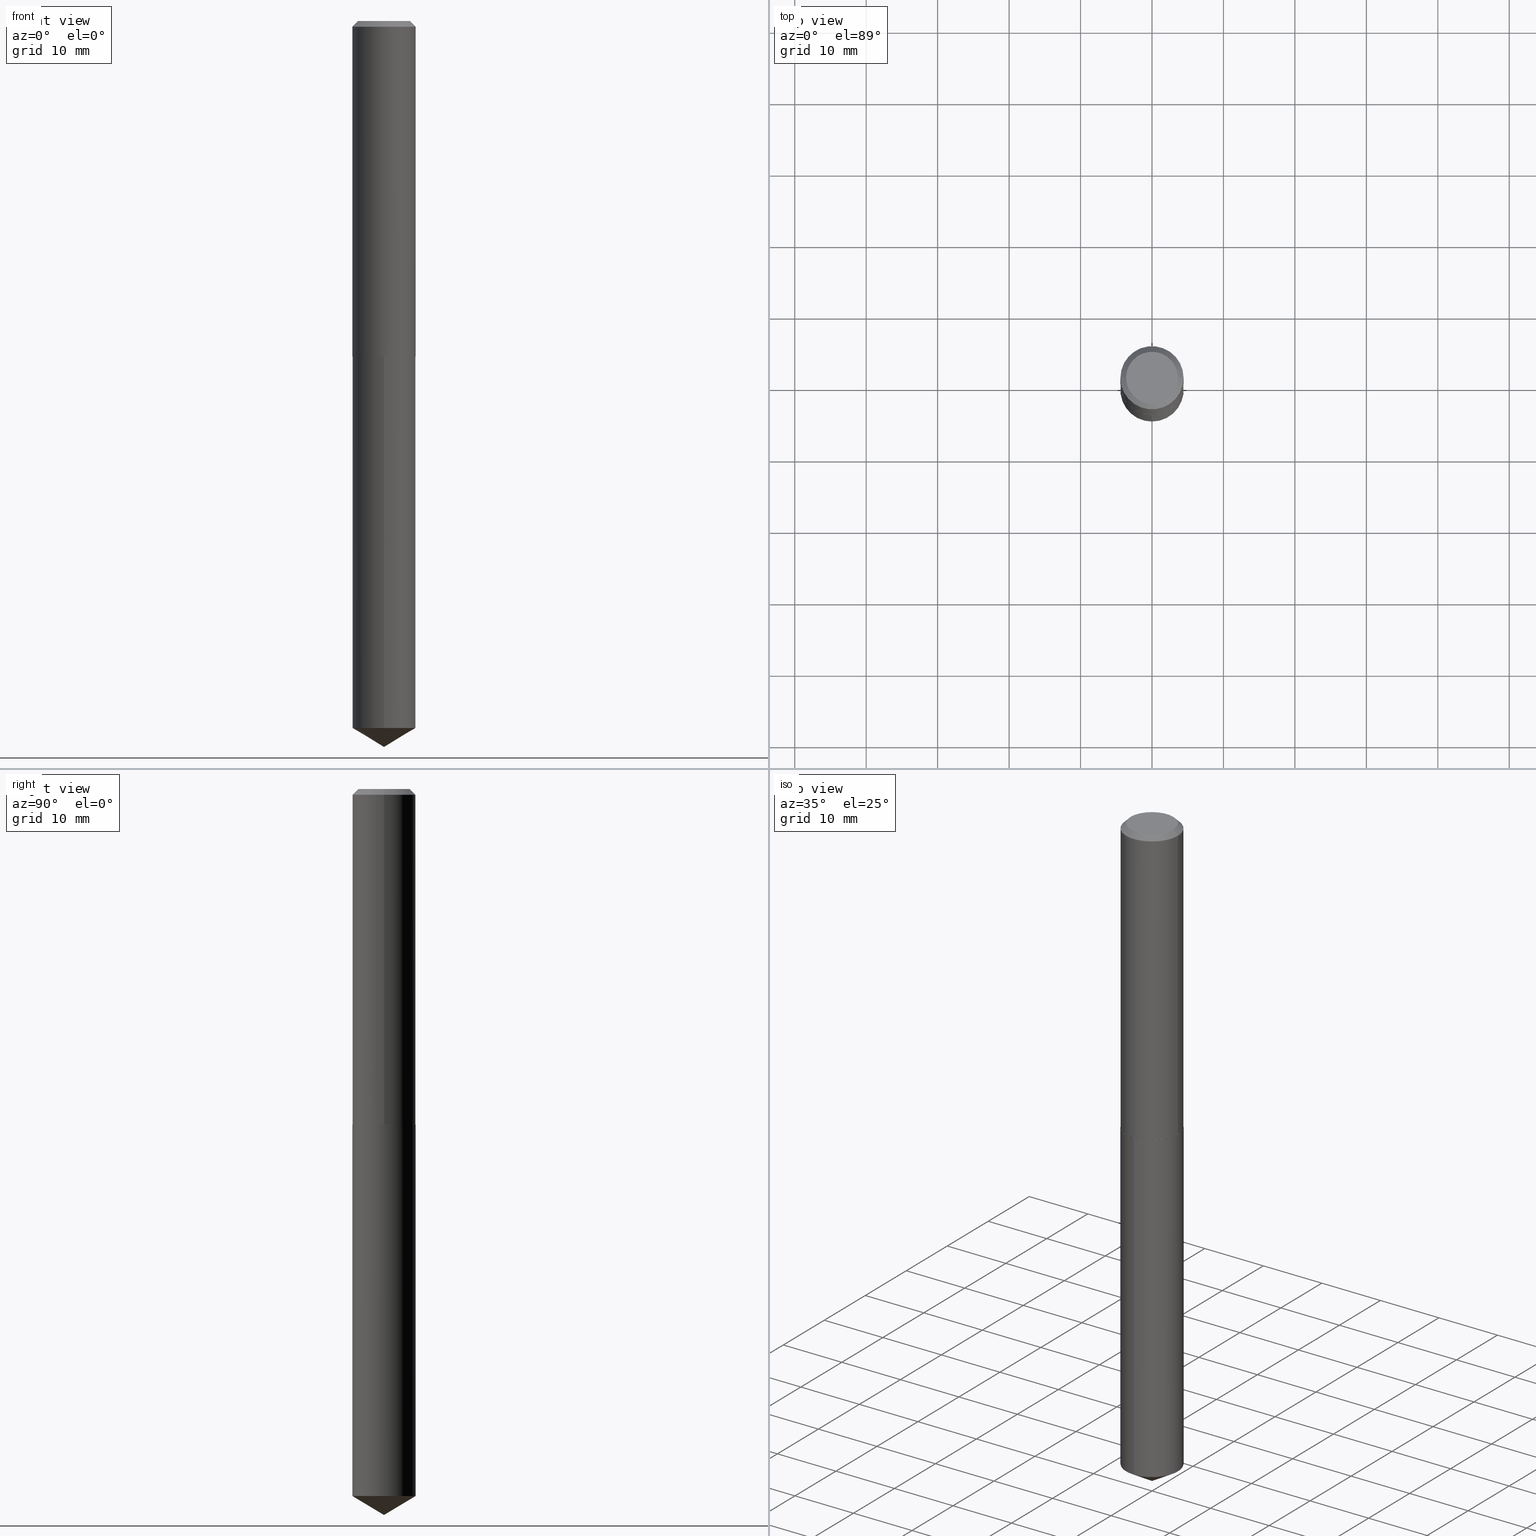
[diagram: canonical four-view strip — front | top / right | iso, engineering-drawing reading convention]
A machine part, canonical four-view strip (front | top / right | iso — engineering-drawing reading convention). The complete STEP part file that produces these views, byte-faithful:
ISO-10303-21;
HEADER;
FILE_DESCRIPTION (( 'STEP AP203' ),
    '1' );
FILE_NAME ('51219.STEP',
    '2024-04-22T18:40:49',
    ( '' ),
    ( '' ),
    'SwSTEP 2.0',
    'SolidWorks 2023',
    '' );
FILE_SCHEMA (( 'CONFIG_CONTROL_DESIGN' ));
ENDSEC;

DATA;
#1 = DIRECTION ( 'NONE',  ( -2.445496631306099242E-29, 3.491441491686219687E-15, 1.000000000000000000 ) ) ;
#2 = LINE ( 'NONE', #126, #95 ) ;
#3 = VECTOR ( 'NONE', #389, 39.37007874015748854 ) ;
#4 = CARTESIAN_POINT ( 'NONE',  ( 4.519226353830132171E-29, -6.452257514182132781E-15, -1.847999999999999865 ) ) ;
#5 = ORIENTED_EDGE ( 'NONE', *, *, #256, .F. ) ;
#6 = DIRECTION ( 'NONE',  ( -2.445496631306099242E-29, 3.491441491686219687E-15, 1.000000000000000000 ) ) ;
#7 = DIRECTION ( 'NONE',  ( -2.445496631306099242E-29, 3.491441491686219687E-15, 1.000000000000000000 ) ) ;
#8 = VERTEX_POINT ( 'NONE', #337 ) ;
#9 = CC_DESIGN_PERSON_AND_ORGANIZATION_ASSIGNMENT ( #232, #107, ( #304 ) ) ;
#10 = ORIENTED_EDGE ( 'NONE', *, *, #241, .F. ) ;
#11 = COORDINATED_UNIVERSAL_TIME_OFFSET ( 5, 0, .BEHIND. ) ;
#12 = AXIS2_PLACEMENT_3D ( 'NONE', #315, #40, #170 ) ;
#13 = ORIENTED_EDGE ( 'NONE', *, *, #316, .T. ) ;
#14 = DIMENSIONAL_EXPONENTS ( 1.000000000000000000, 0.000000000000000000, 0.000000000000000000, 0.000000000000000000, 0.000000000000000000, 0.000000000000000000, 0.000000000000000000 ) ;
#15 = CARTESIAN_POINT ( 'NONE',  ( 7.642090019328611420E-31, -1.091087918388491499E-16, -0.03125000000000024286 ) ) ;
#16 = EDGE_CURVE ( 'NONE', #230, #179, #263, .T. ) ;
#17 = PERSON_AND_ORGANIZATION_ROLE ( 'creator' ) ;
#18 = ORIENTED_EDGE ( 'NONE', *, *, #384, .F. ) ;
#19 = DIRECTION ( 'NONE',  ( -2.445496631306099242E-29, 3.491441491686219687E-15, 1.000000000000000000 ) ) ;
#20 = DIRECTION ( 'NONE',  ( -2.445468806185136597E-29, 3.491481338843145583E-15, 1.000000000000000000 ) ) ;
#21 = AXIS2_PLACEMENT_3D ( 'NONE', #55, #91, #160 ) ;
#22 = LINE ( 'NONE', #154, #3 ) ;
#23 = SECURITY_CLASSIFICATION ( '', '', #114 ) ;
#24 = DIRECTION ( 'NONE',  ( -1.000000000000000000, 6.982962677686266711E-15, 0.000000000000000000 ) ) ;
#25 = PERSON_AND_ORGANIZATION_ROLE ( 'creator' ) ;
#26 = EDGE_CURVE ( 'NONE', #73, #96, #89, .T. ) ;
#27 = PRODUCT_DEFINITION_SHAPE ( 'NONE', 'NONE',  #374 ) ;
#28 = APPROVAL ( #148, 'UNSPECIFIED' ) ;
#29 = DIRECTION ( 'NONE',  ( 1.000000000000000000, -6.982962677686264344E-15, 0.000000000000000000 ) ) ;
#30 = CIRCLE ( 'NONE', #303, 0.1740000000000001823 ) ;
#31 = LOCAL_TIME ( 14, 40, 49.00000000000000000, #205 ) ;
#32 = EDGE_CURVE ( 'NONE', #111, #251, #197, .T. ) ;
#33 = CYLINDRICAL_SURFACE ( 'NONE', #122, 0.1740000000000000713 ) ;
#34 = APPROVAL_DATE_TIME ( #311, #297 ) ;
#35 = DIRECTION ( 'NONE',  ( -2.445496631306099242E-29, 3.491441491686219687E-15, 1.000000000000000000 ) ) ;
#36 = APPROVAL_ROLE ( '' ) ;
#37 = AXIS2_PLACEMENT_3D ( 'NONE', #342, #7, #284 ) ;
#38 = ORIENTED_EDGE ( 'NONE', *, *, #26, .F. ) ;
#39 = VECTOR ( 'NONE', #370, 39.37007874015748143 ) ;
#40 = DIRECTION ( 'NONE',  ( -2.445496631306099242E-29, 3.491441491686219687E-15, 1.000000000000000000 ) ) ;
#41 = CALENDAR_DATE ( 2024, 22, 4 ) ;
#42 = CARTESIAN_POINT ( 'NONE',  ( 9.781883683577318238E-29, -1.396591324183687522E-14, -4.000000000000000000 ) ) ;
#43 = ORIENTED_EDGE ( 'NONE', *, *, #280, .T. ) ;
#44 = AXIS2_PLACEMENT_3D ( 'NONE', #380, #171, #288 ) ;
#45 = ORGANIZATION ( 'UNSPECIFIED', 'UNSPECIFIED', '' ) ;
#46 = ORIENTED_EDGE ( 'NONE', *, *, #59, .F. ) ;
#47 = ORIENTED_EDGE ( 'NONE', *, *, #191, .F. ) ;
#48 = CARTESIAN_POINT ( 'NONE',  ( 0.1427499999999999603, -1.141085766316490663E-15, 5.510910596237823534E-19 ) ) ;
#49 = DIRECTION ( 'NONE',  ( -6.982962677686265133E-15, -1.000000000000000000, 3.140055165131337128E-15 ) ) ;
#50 = DIRECTION ( 'NONE',  ( 1.000000000000000000, -6.982962677686266711E-15, 0.000000000000000000 ) ) ;
#51 = AXIS2_PLACEMENT_3D ( 'NONE', #182, #20, #124 ) ;
#52 = AXIS2_PLACEMENT_3D ( 'NONE', #347, #259, #113 ) ;
#53 = CARTESIAN_POINT ( 'NONE',  ( 0.000000000000000000, 0.000000000000000000, 0.000000000000000000 ) ) ;
#54 = CC_DESIGN_PERSON_AND_ORGANIZATION_ASSIGNMENT ( #199, #17, ( #374 ) ) ;
#55 = CARTESIAN_POINT ( 'NONE',  ( -6.738379978295965082E-48, 9.620620753268161422E-34, 2.755455298081536689E-19 ) ) ;
#56 = AXIS2_PLACEMENT_3D ( 'NONE', #301, #1, #305 ) ;
#57 = CARTESIAN_POINT ( 'NONE',  ( 4.519226353830131610E-29, -6.452257514182131992E-15, -1.847999999999999421 ) ) ;
#58 = CARTESIAN_POINT ( 'NONE',  ( 1.236344360222619006E-15, 0.1739999999999935210, -1.848000000000000309 ) ) ;
#59 = EDGE_CURVE ( 'NONE', #220, #179, #375, .T. ) ;
#60 = FACE_OUTER_BOUND ( 'NONE', #371, .T. ) ;
#61 = CONICAL_SURFACE ( 'NONE', #66, 0.1739999999999999880, 0.7853981633974445042 ) ;
#62 = VECTOR ( 'NONE', #84, 39.37007874015748854 ) ;
#63 = COORDINATED_UNIVERSAL_TIME_OFFSET ( 5, 0, .BEHIND. ) ;
#64 = ORIENTED_EDGE ( 'NONE', *, *, #77, .F. ) ;
#65 = ADVANCED_FACE ( 'NONE', ( #60 ), #217, .T. ) ;
#66 = AXIS2_PLACEMENT_3D ( 'NONE', #159, #366, #24 ) ;
#67 = DIRECTION ( 'NONE',  ( -2.445468806185136597E-29, 3.491481338843145583E-15, 1.000000000000000000 ) ) ;
#68 = EDGE_LOOP ( 'NONE', ( #348, #141, #257 ) ) ;
#69 = ORIENTED_EDGE ( 'NONE', *, *, #308, .F. ) ;
#70 = APPROVAL_ROLE ( '' ) ;
#71 = ORIENTED_EDGE ( 'NONE', *, *, #26, .T. ) ;
#72 = ORIENTED_EDGE ( 'NONE', *, *, #244, .F. ) ;
#73 = VERTEX_POINT ( 'NONE', #379 ) ;
#74 = CIRCLE ( 'NONE', #51, 0.1427499999999999603 ) ;
#75 = AXIS2_PLACEMENT_3D ( 'NONE', #53, #80, #240 ) ;
#76 = CYLINDRICAL_SURFACE ( 'NONE', #158, 0.1739999999999999880 ) ;
#77 = EDGE_CURVE ( 'NONE', #161, #96, #252, .T. ) ;
#78 = PERSON_AND_ORGANIZATION ( #356, #45 ) ;
#79 = MANIFOLD_SOLID_BREP ( 'Body-Move/Copy2[2]', #81 ) ;
#80 = DIRECTION ( 'NONE',  ( -2.445468806185136597E-29, 3.491481338843145583E-15, 1.000000000000000000 ) ) ;
#81 = CLOSED_SHELL ( 'NONE', ( #324, #388, #97, #90, #65, #167, #110, #184 ) ) ;
#82 = DIRECTION ( 'NONE',  ( -2.445468806185136597E-29, 3.491481338843145583E-15, 1.000000000000000000 ) ) ;
#83 = APPROVAL_DATE_TIME ( #298, #28 ) ;
#84 = DIRECTION ( 'NONE',  ( 0.7071067811866923458, -2.468850131083773646E-15, 0.7071067811864025776 ) ) ;
#85 = ADVANCED_FACE ( 'NONE', ( #149 ), #295, .T. ) ;
#86 = PLANE ( 'NONE',  #290 ) ;
#87 = DIRECTION ( 'NONE',  ( 6.090539988449797368E-15, 0.8571673007021165525, 0.5150380749100471611 ) ) ;
#88 = LOCAL_TIME ( 14, 40, 49.00000000000000000, #164 ) ;
#89 = LINE ( 'NONE', #365, #363 ) ;
#90 = ADVANCED_FACE ( 'NONE', ( #155 ), #121, .F. ) ;
#91 = DIRECTION ( 'NONE',  ( 2.438088387897960049E-29, -3.491481338843145188E-15, -1.000000000000000000 ) ) ;
#92 = FACE_OUTER_BOUND ( 'NONE', #112, .T. ) ;
#93 = DIRECTION ( 'NONE',  ( 1.000000000000000000, -6.982962677686265922E-15, 4.876191187177803928E-29 ) ) ;
#94 = CONICAL_SURFACE ( 'NONE', #128, 0.1740000000000001823, 0.7853981633976532262 ) ;
#95 = VECTOR ( 'NONE', #6, 39.37007874015748143 ) ;
#96 = VERTEX_POINT ( 'NONE', #332 ) ;
#97 = ADVANCED_FACE ( 'NONE', ( #302 ), #94, .T. ) ;
#98 = CARTESIAN_POINT ( 'NONE',  ( 9.526259048570207178E-29, -1.360081027718808417E-14, -3.895450252289205384 ) ) ;
#99 =( NAMED_UNIT ( * ) SI_UNIT ( $, .STERADIAN. ) SOLID_ANGLE_UNIT ( ) );
#100 = DIRECTION ( 'NONE',  ( -2.445496631306099242E-29, 3.491441491686219687E-15, 1.000000000000000000 ) ) ;
#101 = PRODUCT_RELATED_PRODUCT_CATEGORY ( 'detail', '', ( #304 ) ) ;
#102 = DIRECTION ( 'NONE',  ( -2.445496631306099242E-29, 3.491441491686219687E-15, 1.000000000000000000 ) ) ;
#103 = APPROVAL_STATUS ( 'not_yet_approved' ) ;
#104 = CIRCLE ( 'NONE', #326, 0.1739999999999999880 ) ;
#105 = ORIENTED_EDGE ( 'NONE', *, *, #359, .T. ) ;
#106 = AXIS2_PLACEMENT_3D ( 'NONE', #204, #323, #50 ) ;
#107 = PERSON_AND_ORGANIZATION_ROLE ( 'design_owner' ) ;
#108 = FACE_OUTER_BOUND ( 'NONE', #196, .T. ) ;
#109 = CARTESIAN_POINT ( 'NONE',  ( -1.215035505917314419E-15, -0.1740000000000135605, -3.895450252289204940 ) ) ;
#110 = ADVANCED_FACE ( 'NONE', ( #362 ), #61, .T. ) ;
#111 = VERTEX_POINT ( 'NONE', #271 ) ;
#112 = EDGE_LOOP ( 'NONE', ( #351, #317 ) ) ;
#113 = DIRECTION ( 'NONE',  ( 1.000000000000000000, 0.000000000000000000, 0.000000000000000000 ) ) ;
#114 = SECURITY_CLASSIFICATION_LEVEL ( 'unclassified' ) ;
#115 = AXIS2_PLACEMENT_3D ( 'NONE', #15, #377, #279 ) ;
#116 = CARTESIAN_POINT ( 'NONE',  ( 0.1735000000000003484, -7.663801538760702012E-15, -1.847999999999999421 ) ) ;
#117 = ORIENTED_EDGE ( 'NONE', *, *, #331, .F. ) ;
#118 = EDGE_LOOP ( 'NONE', ( #291, #71, #64, #139 ) ) ;
#119 = ADVANCED_BREP_SHAPE_REPRESENTATION ( '51219', ( #212, #79, #52 ), #224 ) ;
#120 = FACE_OUTER_BOUND ( 'NONE', #231, .T. ) ;
#121 = PLANE ( 'NONE',  #269 ) ;
#122 = AXIS2_PLACEMENT_3D ( 'NONE', #226, #162, #328 ) ;
#123 = DIRECTION ( 'NONE',  ( 1.000000000000000000, -6.982962677686265922E-15, 4.876176775795935793E-29 ) ) ;
#124 = DIRECTION ( 'NONE',  ( 1.000000000000000000, -6.982962677686265922E-15, 4.876191187177803928E-29 ) ) ;
#125 = DIRECTION ( 'NONE',  ( -2.445468806185136597E-29, 3.491481338843145583E-15, 1.000000000000000000 ) ) ;
#126 = CARTESIAN_POINT ( 'NONE',  ( -1.215035505917364906E-15, -0.1740000000000064273, -1.847999999999999199 ) ) ;
#127 = DIRECTION ( 'NONE',  ( -6.982962677686265133E-15, -1.000000000000000000, 3.140055165131337128E-15 ) ) ;
#128 = AXIS2_PLACEMENT_3D ( 'NONE', #387, #125, #29 ) ;
#129 = CIRCLE ( 'NONE', #234, 0.1735000000000003484 ) ;
#130 = PLANE ( 'NONE',  #21 ) ;
#131 = LINE ( 'NONE', #227, #39 ) ;
#132 = CARTESIAN_POINT ( 'NONE',  ( 9.526259048570207178E-29, -1.360081027718808417E-14, -3.895450252289205384 ) ) ;
#133 = DESIGN_CONTEXT ( 'detailed design', #195, 'design' ) ;
#134 = ORIENTED_EDGE ( 'NONE', *, *, #355, .T. ) ;
#135 = ADVANCED_FACE ( 'NONE', ( #92 ), #86, .F. ) ;
#136 = DIRECTION ( 'NONE',  ( 1.000000000000000000, -6.982962677686266711E-15, 0.000000000000000000 ) ) ;
#137 = AXIS2_PLACEMENT_3D ( 'NONE', #98, #102, #281 ) ;
#138 = EDGE_LOOP ( 'NONE', ( #340, #198, #72, #47 ) ) ;
#139 = ORIENTED_EDGE ( 'NONE', *, *, #355, .F. ) ;
#140 = LOCAL_TIME ( 14, 40, 49.00000000000000000, #63 ) ;
#141 = ORIENTED_EDGE ( 'NONE', *, *, #32, .T. ) ;
#142 = CARTESIAN_POINT ( 'NONE',  ( 4.519226353830132171E-29, -6.452257514182132781E-15, -1.847999999999999865 ) ) ;
#143 = EDGE_LOOP ( 'NONE', ( #10, #325, #229, #192 ) ) ;
#144 = DIRECTION ( 'NONE',  ( 1.000000000000000000, -6.982962677686264344E-15, 0.000000000000000000 ) ) ;
#145 = MECHANICAL_CONTEXT ( 'NONE', #334, 'mechanical' ) ;
#146 = ORIENTED_EDGE ( 'NONE', *, *, #308, .T. ) ;
#147 = CARTESIAN_POINT ( 'NONE',  ( 4.519226353830131610E-29, -6.452257514182131992E-15, -1.847999999999999421 ) ) ;
#148 = APPROVAL_STATUS ( 'not_yet_approved' ) ;
#149 = FACE_OUTER_BOUND ( 'NONE', #287, .T. ) ;
#150 = PERSON_AND_ORGANIZATION ( #356, #45 ) ;
#151 =( LENGTH_UNIT ( ) NAMED_UNIT ( * ) SI_UNIT ( $, .METRE. ) );
#152 = APPROVAL_ROLE ( '' ) ;
#153 =( NAMED_UNIT ( * ) PLANE_ANGLE_UNIT ( ) SI_UNIT ( $, .RADIAN. ) );
#154 = CARTESIAN_POINT ( 'NONE',  ( 0.1739999999999999880, -1.302835443451095394E-15, -0.03125000000000024286 ) ) ;
#155 = FACE_OUTER_BOUND ( 'NONE', #225, .T. ) ;
#156 = EDGE_CURVE ( 'NONE', #251, #220, #318, .T. ) ;
#157 = CIRCLE ( 'NONE', #206, 0.1427499999999999603 ) ;
#158 = AXIS2_PLACEMENT_3D ( 'NONE', #381, #19, #237 ) ;
#159 = CARTESIAN_POINT ( 'NONE',  ( 7.642090019328611420E-31, -1.091087918388491499E-16, -0.03125000000000024286 ) ) ;
#160 = DIRECTION ( 'NONE',  ( -1.000000000000000000, 6.982962677686265922E-15, -4.876176775795935793E-29 ) ) ;
#161 = VERTEX_POINT ( 'NONE', #313 ) ;
#162 = DIRECTION ( 'NONE',  ( -2.445468806185136597E-29, 3.491481338843145583E-15, 1.000000000000000000 ) ) ;
#163 = ADVANCED_FACE ( 'NONE', ( #222 ), #168, .T. ) ;
#164 = COORDINATED_UNIVERSAL_TIME_OFFSET ( 5, 0, .BEHIND. ) ;
#165 = ORIENTED_EDGE ( 'NONE', *, *, #203, .T. ) ;
#166 = CARTESIAN_POINT ( 'NONE',  ( -1.347675995659193016E-47, 1.924124150653632284E-33, 5.510910596163073378E-19 ) ) ;
#167 = ADVANCED_FACE ( 'NONE', ( #108 ), #33, .T. ) ;
#168 = CYLINDRICAL_SURFACE ( 'NONE', #37, 0.1739999999999999880 ) ;
#169 = PERSON_AND_ORGANIZATION ( #356, #45 ) ;
#170 = DIRECTION ( 'NONE',  ( -6.982962677686265133E-15, -1.000000000000000000, 3.140055165131337128E-15 ) ) ;
#171 = DIRECTION ( 'NONE',  ( -2.445468806185136597E-29, 3.491481338843145583E-15, 1.000000000000000000 ) ) ;
#172 = DIRECTION ( 'NONE',  ( 6.982962677686265922E-15, 1.000000000000000000, -3.491441491686219687E-15 ) ) ;
#173 = ORIENTED_EDGE ( 'NONE', *, *, #221, .F. ) ;
#174 = DATE_TIME_ROLE ( 'classification_date' ) ;
#175 = ORIENTED_EDGE ( 'NONE', *, *, #16, .F. ) ;
#176 = CARTESIAN_POINT ( 'NONE',  ( 4.518003619427039369E-29, -6.450511773512711278E-15, -1.847499999999999920 ) ) ;
#177 = CARTESIAN_POINT ( 'NONE',  ( -0.1739999999999999880, -2.043465922453204373E-15, -0.03125000000000024286 ) ) ;
#178 = APPLICATION_PROTOCOL_DEFINITION ( 'international standard', 'config_control_design', 1994, #334 ) ;
#179 = VERTEX_POINT ( 'NONE', #350 ) ;
#180 = CIRCLE ( 'NONE', #275, 0.1735000000000003484 ) ;
#181 = AXIS2_PLACEMENT_3D ( 'NONE', #132, #100, #127 ) ;
#182 = CARTESIAN_POINT ( 'NONE',  ( -1.347675995659193016E-47, 1.924124150653632284E-33, 5.510910596163073378E-19 ) ) ;
#183 = CARTESIAN_POINT ( 'NONE',  ( 7.642090019328611420E-31, -1.091087918388491499E-16, -0.03125000000000024286 ) ) ;
#184 = ADVANCED_FACE ( 'NONE', ( #245 ), #130, .F. ) ;
#185 = LINE ( 'NONE', #267, #62 ) ;
#186 = CARTESIAN_POINT ( 'NONE',  ( 0.1740000000000000713, -1.215035505917411055E-15, 8.484547589884932035E-30 ) ) ;
#187 = CC_DESIGN_PERSON_AND_ORGANIZATION_ASSIGNMENT ( #329, #25, ( #270 ) ) ;
#188 = AXIS2_PLACEMENT_3D ( 'NONE', #142, #266, #49 ) ;
#189 = APPROVAL ( #103, 'UNSPECIFIED' ) ;
#190 = LENGTH_MEASURE_WITH_UNIT ( LENGTH_MEASURE( 0.02539999999999999897 ), #151 );
#191 = EDGE_CURVE ( 'NONE', #161, #8, #367, .T. ) ;
#192 = ORIENTED_EDGE ( 'NONE', *, *, #203, .F. ) ;
#193 = CIRCLE ( 'NONE', #188, 0.1739999999999999880 ) ;
#194 = EDGE_LOOP ( 'NONE', ( #43, #376 ) ) ;
#195 = APPLICATION_CONTEXT ( 'configuration controlled 3d designs of mechanical parts and assemblies' ) ;
#196 = EDGE_LOOP ( 'NONE', ( #117, #321, #261, #282 ) ) ;
#197 = LINE ( 'NONE', #42, #385 ) ;
#198 = ORIENTED_EDGE ( 'NONE', *, *, #331, .T. ) ;
#199 = PERSON_AND_ORGANIZATION ( #356, #45 ) ;
#200 = AXIS2_PLACEMENT_3D ( 'NONE', #176, #382, #296 ) ;
#201 = LOCAL_TIME ( 14, 40, 49.00000000000000000, #360 ) ;
#202 = ORIENTED_EDGE ( 'NONE', *, *, #280, .F. ) ;
#203 = EDGE_CURVE ( 'NONE', #265, #228, #299, .T. ) ;
#204 = CARTESIAN_POINT ( 'NONE',  ( 7.642090019328611420E-31, -1.091087918388491499E-16, -0.03125000000000024286 ) ) ;
#205 = COORDINATED_UNIVERSAL_TIME_OFFSET ( 5, 0, .BEHIND. ) ;
#206 = AXIS2_PLACEMENT_3D ( 'NONE', #166, #67, #93 ) ;
#207 = PERSON_AND_ORGANIZATION_ROLE ( 'classification_officer' ) ;
#208 = CC_DESIGN_APPROVAL ( #297, ( #374 ) ) ;
#209 = PERSON_AND_ORGANIZATION_ROLE ( 'design_supplier' ) ;
#210 = CALENDAR_DATE ( 2024, 22, 4 ) ;
#211 = APPLICATION_PROTOCOL_DEFINITION ( 'international standard', 'config_control_design', 1994, #195 ) ;
#212 = MANIFOLD_SOLID_BREP ( 'Body-Move/Copy2[1]', #336 ) ;
#213 = DIRECTION ( 'NONE',  ( -6.982962677686265922E-15, -1.000000000000000000, 3.468864327941557532E-15 ) ) ;
#214 = DIRECTION ( 'NONE',  ( -2.445496631306099242E-29, 3.491441491686219687E-15, 1.000000000000000000 ) ) ;
#215 = ADVANCED_FACE ( 'NONE', ( #307 ), #223, .T. ) ;
#216 = CARTESIAN_POINT ( 'NONE',  ( -0.1739999999999999880, 1.105926714078561165E-15, -0.03125000000000024286 ) ) ;
#217 = CONICAL_SURFACE ( 'NONE', #44, 0.1740000000000001823, 0.7853981633976532262 ) ;
#218 = CC_DESIGN_SECURITY_CLASSIFICATION ( #23, ( #270 ) ) ;
#219 = CARTESIAN_POINT ( 'NONE',  ( -8.649745982891013731E-28, 1.234924868400484926E-13, 35.37007874015748143 ) ) ;
#220 = VERTEX_POINT ( 'NONE', #335 ) ;
#221 = EDGE_CURVE ( 'NONE', #179, #230, #193, .T. ) ;
#222 = FACE_OUTER_BOUND ( 'NONE', #249, .T. ) ;
#223 = CONICAL_SURFACE ( 'NONE', #358, 65.52281426576912793, 1.029744258676659197 ) ;
#224 =( GEOMETRIC_REPRESENTATION_CONTEXT ( 3 ) GLOBAL_UNCERTAINTY_ASSIGNED_CONTEXT ( ( #341 ) ) GLOBAL_UNIT_ASSIGNED_CONTEXT ( ( #238, #153, #99 ) ) REPRESENTATION_CONTEXT ( 'NONE', 'WORKASPACE' ) );
#225 = EDGE_LOOP ( 'NONE', ( #352, #18 ) ) ;
#226 = CARTESIAN_POINT ( 'NONE',  ( 0.000000000000000000, 0.000000000000000000, 0.000000000000000000 ) ) ;
#227 = CARTESIAN_POINT ( 'NONE',  ( -0.1740000000000000713, 1.236344360222574830E-15, -8.558947057043539962E-30 ) ) ;
#228 = VERTEX_POINT ( 'NONE', #177 ) ;
#229 = ORIENTED_EDGE ( 'NONE', *, *, #244, .T. ) ;
#230 = VERTEX_POINT ( 'NONE', #294 ) ;
#231 = EDGE_LOOP ( 'NONE', ( #255, #322, #175, #69 ) ) ;
#232 = PERSON_AND_ORGANIZATION ( #356, #45 ) ;
#233 = VECTOR ( 'NONE', #87, 39.37007874015748143 ) ;
#234 = AXIS2_PLACEMENT_3D ( 'NONE', #357, #82, #327 ) ;
#235 = DIRECTION ( 'NONE',  ( 1.000000000000000000, -6.982962677686265133E-15, 0.000000000000000000 ) ) ;
#236 = EDGE_CURVE ( 'NONE', #346, #73, #180, .T. ) ;
#237 = DIRECTION ( 'NONE',  ( -6.982962677686265133E-15, -1.000000000000000000, 3.140055165131337128E-15 ) ) ;
#238 =( CONVERSION_BASED_UNIT ( 'INCH', #190 ) LENGTH_UNIT ( ) NAMED_UNIT ( #14 ) );
#239 = CYLINDRICAL_SURFACE ( 'NONE', #75, 0.1740000000000000713 ) ;
#240 = DIRECTION ( 'NONE',  ( 1.000000000000000000, -6.982962677686267499E-15, 4.876176775795935793E-29 ) ) ;
#241 = EDGE_CURVE ( 'NONE', #372, #265, #74, .T. ) ;
#242 = CC_DESIGN_PERSON_AND_ORGANIZATION_ASSIGNMENT ( #78, #207, ( #23 ) ) ;
#243 = CARTESIAN_POINT ( 'NONE',  ( -0.1427499999999999603, 1.051372318159137798E-15, 5.510910596091454784E-19 ) ) ;
#244 = EDGE_CURVE ( 'NONE', #8, #228, #104, .T. ) ;
#245 = FACE_OUTER_BOUND ( 'NONE', #194, .T. ) ;
#246 = DIRECTION ( 'NONE',  ( -0.7071067811865447972, 2.468850131082228662E-15, -0.7071067811865501263 ) ) ;
#247 = VECTOR ( 'NONE', #364, 39.37007874015748143 ) ;
#248 = DIRECTION ( 'NONE',  ( 2.445496631306098962E-29, -3.491441491686219687E-15, -1.000000000000000000 ) ) ;
#249 = EDGE_LOOP ( 'NONE', ( #46, #13, #146, #173 ) ) ;
#250 = ORIENTED_EDGE ( 'NONE', *, *, #156, .F. ) ;
#251 = VERTEX_POINT ( 'NONE', #109 ) ;
#252 = CIRCLE ( 'NONE', #200, 0.1740000000000001823 ) ;
#253 = DIRECTION ( 'NONE',  ( -5.985567269335959423E-15, -0.8571673007021128887, 0.5150380749100530453 ) ) ;
#254 = ORIENTED_EDGE ( 'NONE', *, *, #272, .T. ) ;
#255 = ORIENTED_EDGE ( 'NONE', *, *, #156, .T. ) ;
#256 = EDGE_CURVE ( 'NONE', #372, #8, #22, .T. ) ;
#257 = ORIENTED_EDGE ( 'NONE', *, *, #316, .F. ) ;
#258 = EDGE_LOOP ( 'NONE', ( #5, #202, #165, #105 ) ) ;
#259 = DIRECTION ( 'NONE',  ( 0.000000000000000000, 0.000000000000000000, 1.000000000000000000 ) ) ;
#260 = DATE_TIME_ROLE ( 'creation_date' ) ;
#261 = ORIENTED_EDGE ( 'NONE', *, *, #191, .T. ) ;
#262 = PERSON_AND_ORGANIZATION ( #356, #45 ) ;
#263 = CIRCLE ( 'NONE', #12, 0.1739999999999999880 ) ;
#264 = APPROVAL_PERSON_ORGANIZATION ( #354, #189, #36 ) ;
#265 = VERTEX_POINT ( 'NONE', #243 ) ;
#266 = DIRECTION ( 'NONE',  ( -2.445496631306099242E-29, 3.491441491686219687E-15, 1.000000000000000000 ) ) ;
#267 = CARTESIAN_POINT ( 'NONE',  ( 0.1740000000000001823, -7.665547279430122726E-15, -1.847499999999999920 ) ) ;
#268 = FACE_OUTER_BOUND ( 'NONE', #138, .T. ) ;
#269 = AXIS2_PLACEMENT_3D ( 'NONE', #57, #390, #123 ) ;
#270 = PRODUCT_DEFINITION_FORMATION_WITH_SPECIFIED_SOURCE ( 'ANY', '', #304, .NOT_KNOWN. ) ;
#271 = CARTESIAN_POINT ( 'NONE',  ( 9.781986525224398090E-29, -1.396576596674487717E-14, -4.000000000000000000 ) ) ;
#272 = EDGE_CURVE ( 'NONE', #111, #220, #361, .T. ) ;
#273 = CARTESIAN_POINT ( 'NONE',  ( 9.781987427024246972E-29, -1.396576596674487717E-14, -4.000000000000000000 ) ) ;
#274 = CC_DESIGN_PERSON_AND_ORGANIZATION_ASSIGNMENT ( #150, #209, ( #270 ) ) ;
#275 = AXIS2_PLACEMENT_3D ( 'NONE', #147, #383, #235 ) ;
#276 = CC_DESIGN_APPROVAL ( #28, ( #270 ) ) ;
#277 = CALENDAR_DATE ( 2024, 22, 4 ) ;
#278 = CALENDAR_DATE ( 2024, 22, 4 ) ;
#279 = DIRECTION ( 'NONE',  ( -1.000000000000000000, 6.982962677686266711E-15, 0.000000000000000000 ) ) ;
#280 = EDGE_CURVE ( 'NONE', #265, #372, #157, .T. ) ;
#281 = DIRECTION ( 'NONE',  ( -6.982962677686265133E-15, -1.000000000000000000, 3.140055165131337128E-15 ) ) ;
#282 = ORIENTED_EDGE ( 'NONE', *, *, #359, .F. ) ;
#283 = DIRECTION ( 'NONE',  ( -2.445468806185136597E-29, 3.491481338843145583E-15, 1.000000000000000000 ) ) ;
#284 = DIRECTION ( 'NONE',  ( -6.982962677686265133E-15, -1.000000000000000000, 3.140055165131337128E-15 ) ) ;
#285 = DIRECTION ( 'NONE',  ( -2.445468806185136597E-29, 3.491481338843145583E-15, 1.000000000000000000 ) ) ;
#286 = DIRECTION ( 'NONE',  ( -0.7071067811866923458, 7.493145998870876386E-15, 0.7071067811864025776 ) ) ;
#287 = EDGE_LOOP ( 'NONE', ( #309, #254, #250 ) ) ;
#288 = DIRECTION ( 'NONE',  ( 1.000000000000000000, -6.982962677686264344E-15, 0.000000000000000000 ) ) ;
#289 = EDGE_CURVE ( 'NONE', #96, #161, #30, .T. ) ;
#290 = AXIS2_PLACEMENT_3D ( 'NONE', #4, #248, #172 ) ;
#291 = ORIENTED_EDGE ( 'NONE', *, *, #236, .T. ) ;
#292 = ORIENTED_EDGE ( 'NONE', *, *, #384, .T. ) ;
#293 = CALENDAR_DATE ( 2024, 22, 4 ) ;
#294 = CARTESIAN_POINT ( 'NONE',  ( -1.215035505917364906E-15, -0.1740000000000064273, -1.847999999999999199 ) ) ;
#295 = CONICAL_SURFACE ( 'NONE', #56, 65.52281426576912793, 1.029744258676659197 ) ;
#296 = DIRECTION ( 'NONE',  ( 1.000000000000000000, -6.982962677686264344E-15, 0.000000000000000000 ) ) ;
#297 = APPROVAL ( #306, 'UNSPECIFIED' ) ;
#298 = DATE_AND_TIME ( #210, #201 ) ;
#299 = LINE ( 'NONE', #216, #300 ) ;
#300 = VECTOR ( 'NONE', #246, 39.37007874015748854 ) ;
#301 = CARTESIAN_POINT ( 'NONE',  ( -8.649745982891013731E-28, 1.234924868400484926E-13, 35.37007874015748143 ) ) ;
#302 = FACE_OUTER_BOUND ( 'NONE', #118, .T. ) ;
#303 = AXIS2_PLACEMENT_3D ( 'NONE', #312, #283, #144 ) ;
#304 = PRODUCT ( '51219', '51219', '', ( #145 ) ) ;
#305 = DIRECTION ( 'NONE',  ( -6.982962677686265922E-15, -1.000000000000000000, 3.468864327941557532E-15 ) ) ;
#306 = APPROVAL_STATUS ( 'not_yet_approved' ) ;
#307 = FACE_OUTER_BOUND ( 'NONE', #68, .T. ) ;
#308 = EDGE_CURVE ( 'NONE', #251, #230, #2, .T. ) ;
#309 = ORIENTED_EDGE ( 'NONE', *, *, #32, .F. ) ;
#310 = CC_DESIGN_APPROVAL ( #189, ( #23 ) ) ;
#311 = DATE_AND_TIME ( #278, #140 ) ;
#312 = CARTESIAN_POINT ( 'NONE',  ( 4.518003619427039369E-29, -6.450511773512711278E-15, -1.847499999999999920 ) ) ;
#313 = CARTESIAN_POINT ( 'NONE',  ( 0.1740000000000001823, -7.665547279430122726E-15, -1.847499999999999920 ) ) ;
#314 = SHAPE_DEFINITION_REPRESENTATION ( #27, #119 ) ;
#315 = CARTESIAN_POINT ( 'NONE',  ( 4.519226353830132171E-29, -6.452257514182132781E-15, -1.847999999999999865 ) ) ;
#316 = EDGE_CURVE ( 'NONE', #220, #251, #386, .T. ) ;
#317 = ORIENTED_EDGE ( 'NONE', *, *, #221, .T. ) ;
#318 = CIRCLE ( 'NONE', #137, 0.1739999999999999880 ) ;
#319 = APPROVAL_PERSON_ORGANIZATION ( #262, #28, #152 ) ;
#320 = DATE_AND_TIME ( #41, #31 ) ;
#321 = ORIENTED_EDGE ( 'NONE', *, *, #289, .T. ) ;
#322 = ORIENTED_EDGE ( 'NONE', *, *, #59, .T. ) ;
#323 = DIRECTION ( 'NONE',  ( -2.445468806185136597E-29, 3.491481338843145583E-15, 1.000000000000000000 ) ) ;
#324 = ADVANCED_FACE ( 'NONE', ( #344 ), #345, .T. ) ;
#325 = ORIENTED_EDGE ( 'NONE', *, *, #256, .T. ) ;
#326 = AXIS2_PLACEMENT_3D ( 'NONE', #183, #285, #136 ) ;
#327 = DIRECTION ( 'NONE',  ( 1.000000000000000000, -6.982962677686265133E-15, 0.000000000000000000 ) ) ;
#328 = DIRECTION ( 'NONE',  ( 1.000000000000000000, -6.982962677686267499E-15, 4.876176775795935793E-29 ) ) ;
#329 = PERSON_AND_ORGANIZATION ( #356, #45 ) ;
#330 = VECTOR ( 'NONE', #214, 39.37007874015748143 ) ;
#331 = EDGE_CURVE ( 'NONE', #96, #228, #131, .T. ) ;
#332 = CARTESIAN_POINT ( 'NONE',  ( -0.1740000000000001823, -5.214167413290135067E-15, -1.847499999999999920 ) ) ;
#333 = CC_DESIGN_DATE_AND_TIME_ASSIGNMENT ( #353, #174, ( #23 ) ) ;
#334 = APPLICATION_CONTEXT ( 'configuration controlled 3d designs of mechanical parts and assemblies' ) ;
#335 = CARTESIAN_POINT ( 'NONE',  ( 1.236344360222669296E-15, 0.1739999999999863600, -3.895450252289206272 ) ) ;
#336 = CLOSED_SHELL ( 'NONE', ( #339, #85, #215, #163, #135 ) ) ;
#337 = CARTESIAN_POINT ( 'NONE',  ( 0.1739999999999999880, -1.324144297756259366E-15, -0.03125000000000024286 ) ) ;
#338 = LOCAL_TIME ( 14, 40, 49.00000000000000000, #11 ) ;
#339 = ADVANCED_FACE ( 'NONE', ( #120 ), #76, .T. ) ;
#340 = ORIENTED_EDGE ( 'NONE', *, *, #77, .T. ) ;
#341 = UNCERTAINTY_MEASURE_WITH_UNIT (LENGTH_MEASURE( 1.000000000000000082E-05 ), #238, 'distance_accuracy_value', 'NONE');
#342 = CARTESIAN_POINT ( 'NONE',  ( 4.519226353830132171E-29, -6.452257514182132781E-15, -1.847999999999999865 ) ) ;
#343 = APPROVAL_DATE_TIME ( #369, #189 ) ;
#344 = FACE_OUTER_BOUND ( 'NONE', #143, .T. ) ;
#345 = CONICAL_SURFACE ( 'NONE', #115, 0.1739999999999999880, 0.7853981633974445042 ) ;
#346 = VERTEX_POINT ( 'NONE', #116 ) ;
#347 = CARTESIAN_POINT ( 'NONE',  ( 0.000000000000000000, 0.000000000000000000, 0.000000000000000000 ) ) ;
#348 = ORIENTED_EDGE ( 'NONE', *, *, #272, .F. ) ;
#349 = CC_DESIGN_DATE_AND_TIME_ASSIGNMENT ( #320, #260, ( #374 ) ) ;
#350 = CARTESIAN_POINT ( 'NONE',  ( 1.236344360222669493E-15, 0.1739999999999935210, -1.848000000000000309 ) ) ;
#351 = ORIENTED_EDGE ( 'NONE', *, *, #16, .T. ) ;
#352 = ORIENTED_EDGE ( 'NONE', *, *, #236, .F. ) ;
#353 = DATE_AND_TIME ( #293, #338 ) ;
#354 = PERSON_AND_ORGANIZATION ( #356, #45 ) ;
#355 = EDGE_CURVE ( 'NONE', #346, #161, #185, .T. ) ;
#356 = PERSON ( 'UNSPECIFIED', 'UNSPECIFIED', 'UNSPECIFIED', ('UNSPECIFIED'), ('UNSPECIFIED'), ('UNSPECIFIED') ) ;
#357 = CARTESIAN_POINT ( 'NONE',  ( 4.519226353830131610E-29, -6.452257514182131992E-15, -1.847999999999999421 ) ) ;
#358 = AXIS2_PLACEMENT_3D ( 'NONE', #219, #35, #213 ) ;
#359 = EDGE_CURVE ( 'NONE', #228, #8, #373, .T. ) ;
#360 = COORDINATED_UNIVERSAL_TIME_OFFSET ( 5, 0, .BEHIND. ) ;
#361 = LINE ( 'NONE', #273, #233 ) ;
#362 = FACE_OUTER_BOUND ( 'NONE', #258, .T. ) ;
#363 = VECTOR ( 'NONE', #286, 39.37007874015748854 ) ;
#364 = DIRECTION ( 'NONE',  ( -2.445468806185136877E-29, 3.491481338843145188E-15, 1.000000000000000000 ) ) ;
#365 = CARTESIAN_POINT ( 'NONE',  ( -0.1740000000000001823, -5.214167413290135067E-15, -1.847499999999999920 ) ) ;
#366 = DIRECTION ( 'NONE',  ( 2.445468806185136597E-29, -3.491481338843145583E-15, -1.000000000000000000 ) ) ;
#367 = LINE ( 'NONE', #186, #247 ) ;
#368 = APPROVAL_PERSON_ORGANIZATION ( #169, #297, #70 ) ;
#369 = DATE_AND_TIME ( #277, #88 ) ;
#370 = DIRECTION ( 'NONE',  ( -2.445468806185136877E-29, 3.491481338843145188E-15, 1.000000000000000000 ) ) ;
#371 = EDGE_LOOP ( 'NONE', ( #38, #292, #134, #378 ) ) ;
#372 = VERTEX_POINT ( 'NONE', #48 ) ;
#373 = CIRCLE ( 'NONE', #106, 0.1739999999999999880 ) ;
#374 = PRODUCT_DEFINITION ( 'UNKNOWN', '', #270, #133 ) ;
#375 = LINE ( 'NONE', #58, #330 ) ;
#376 = ORIENTED_EDGE ( 'NONE', *, *, #241, .T. ) ;
#377 = DIRECTION ( 'NONE',  ( 2.445468806185136597E-29, -3.491481338843145583E-15, -1.000000000000000000 ) ) ;
#378 = ORIENTED_EDGE ( 'NONE', *, *, #289, .F. ) ;
#379 = CARTESIAN_POINT ( 'NONE',  ( -0.1735000000000003484, -5.216816640464245479E-15, -1.847999999999999421 ) ) ;
#380 = CARTESIAN_POINT ( 'NONE',  ( 4.518003619427039369E-29, -6.450511773512711278E-15, -1.847499999999999920 ) ) ;
#381 = CARTESIAN_POINT ( 'NONE',  ( 4.519226353830132171E-29, -6.452257514182132781E-15, -1.847999999999999865 ) ) ;
#382 = DIRECTION ( 'NONE',  ( -2.445468806185136597E-29, 3.491481338843145583E-15, 1.000000000000000000 ) ) ;
#383 = DIRECTION ( 'NONE',  ( -2.445468806185136597E-29, 3.491481338843145583E-15, 1.000000000000000000 ) ) ;
#384 = EDGE_CURVE ( 'NONE', #73, #346, #129, .T. ) ;
#385 = VECTOR ( 'NONE', #253, 39.37007874015748854 ) ;
#386 = CIRCLE ( 'NONE', #181, 0.1739999999999999880 ) ;
#387 = CARTESIAN_POINT ( 'NONE',  ( 4.518003619427039369E-29, -6.450511773512711278E-15, -1.847499999999999920 ) ) ;
#388 = ADVANCED_FACE ( 'NONE', ( #268 ), #239, .T. ) ;
#389 = DIRECTION ( 'NONE',  ( 0.7071067811865447972, -7.319954787623245001E-15, -0.7071067811865501263 ) ) ;
#390 = DIRECTION ( 'NONE',  ( -2.438088387897960049E-29, 3.491481338843145188E-15, 1.000000000000000000 ) ) ;
ENDSEC;
END-ISO-10303-21;
